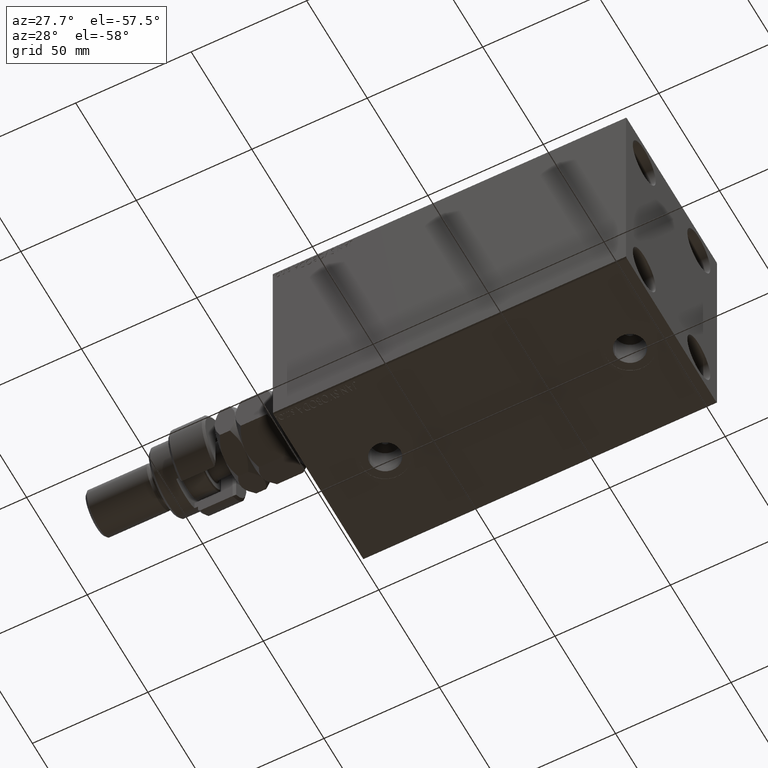
[diagram: clean part render]
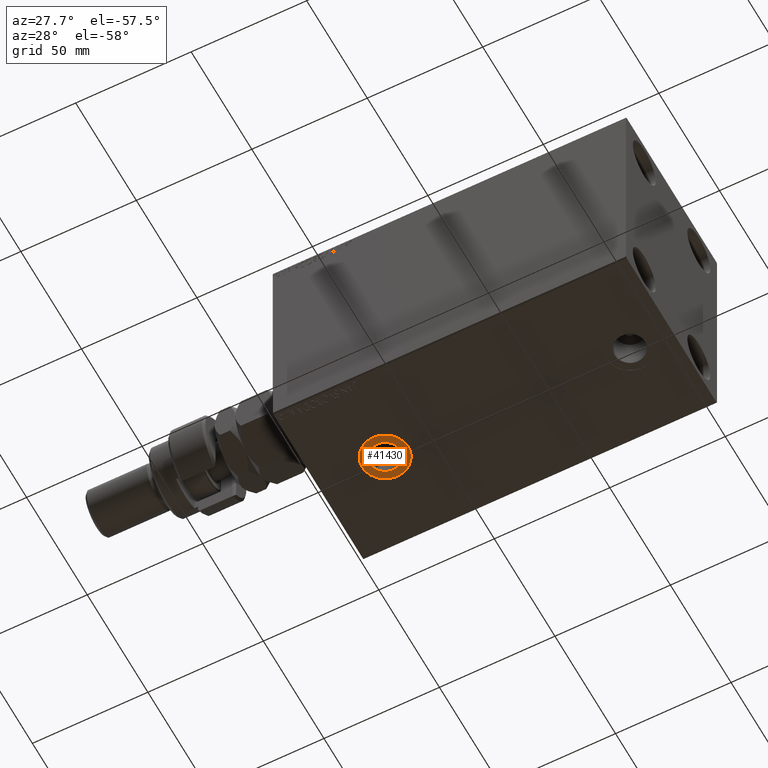
[diagram: same view with one face highlighted and labeled with its STEP entity id]
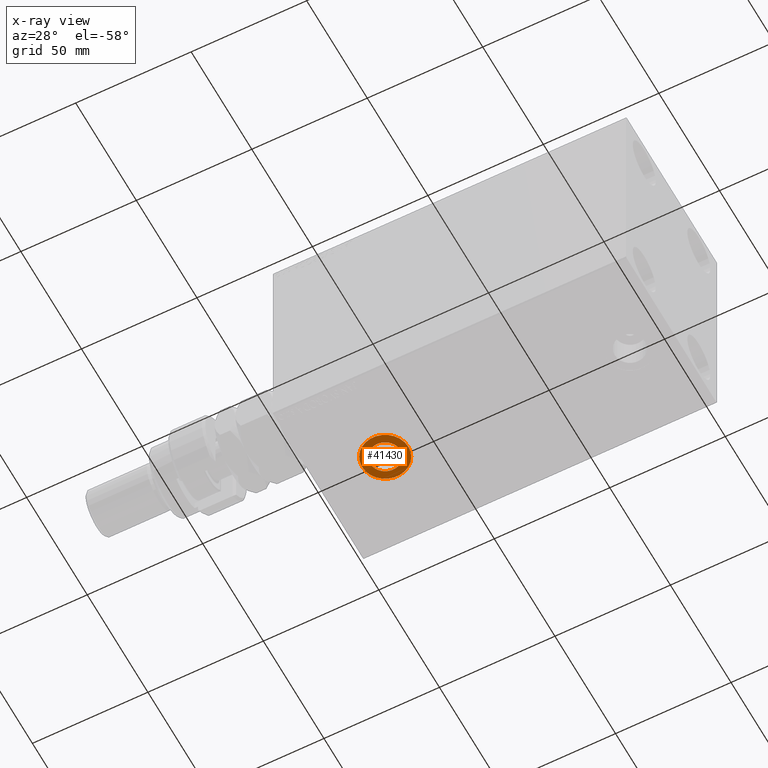
[diagram: x-ray of the same camera — body ghosted, the highlighted face saturated]
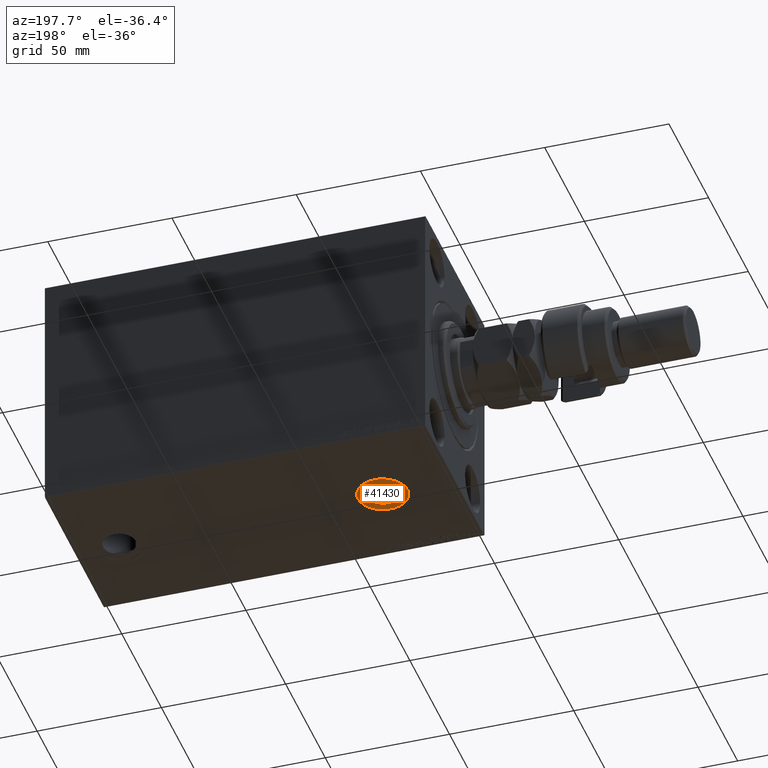
[diagram: same view with one face highlighted and labeled with its STEP entity id]
A machine part, auxiliary view. The second image highlights one B-rep face of the part: STEP entity #41430.
The next image is the same camera in x-ray: the body ghosted, the highlighted face saturated — about 0% of this face is hidden behind the body in this view.
A second angle (auxiliary view) of the same face is appended — the face is thin or edge-on in the first view.
In plain terms, the highlighted planar face has unit normal (0, 0, -1).
Its self-contained STEP definition (entity closure, byte-faithful):
#401 = ORIENTED_EDGE ( 'NONE', *, *, #15874, .F. ) ;
#783 = DIRECTION ( 'NONE',  ( 0.000000000000000000, 0.000000000000000000, -1.000000000000000000 ) ) ;
#968 = EDGE_CURVE ( 'NONE', #20266, #23835, #18720, .T. ) ;
#982 = ORIENTED_EDGE ( 'NONE', *, *, #968, .F. ) ;
#1516 = EDGE_LOOP ( 'NONE', ( #18045, #42117 ) ) ;
#2648 = CARTESIAN_POINT ( 'NONE',  ( 29.00000000000000000, -1.570503894091045345E-15, -49.90000000000000568 ) ) ;
#5655 = DIRECTION ( 'NONE',  ( -1.000000000000000000, 0.000000000000000000, -0.000000000000000000 ) ) ;
#6137 = FACE_OUTER_BOUND ( 'NONE', #1516, .T. ) ;
#7808 = AXIS2_PLACEMENT_3D ( 'NONE', #27319, #783, #19769 ) ;
#8487 = DIRECTION ( 'NONE',  ( -1.000000000000000000, 0.000000000000000000, 0.000000000000000000 ) ) ;
#9449 = DIRECTION ( 'NONE',  ( 0.000000000000000000, 0.000000000000000000, -1.000000000000000000 ) ) ;
#10602 = EDGE_LOOP ( 'NONE', ( #401, #982 ) ) ;
#12058 = VERTEX_POINT ( 'NONE', #36276 ) ;
#15405 = CARTESIAN_POINT ( 'NONE',  ( 19.00000000000000355, -1.570503894091045345E-15, -49.90000000000000568 ) ) ;
#15874 = EDGE_CURVE ( 'NONE', #23835, #20266, #47045, .T. ) ;
#16768 = DIRECTION ( 'NONE',  ( -1.000000000000000000, 0.000000000000000000, 0.000000000000000000 ) ) ;
#17023 = AXIS2_PLACEMENT_3D ( 'NONE', #19471, #30670, #8487 ) ;
#18045 = ORIENTED_EDGE ( 'NONE', *, *, #40230, .T. ) ;
#18720 = CIRCLE ( 'NONE', #7808, 6.580000000000002736 ) ;
#19471 = CARTESIAN_POINT ( 'NONE',  ( 29.00000000000000000, -1.570503894091045345E-15, -49.90000000000000568 ) ) ;
#19769 = DIRECTION ( 'NONE',  ( -1.000000000000000000, 0.000000000000000000, 0.000000000000000000 ) ) ;
#20266 = VERTEX_POINT ( 'NONE', #40805 ) ;
#23835 = VERTEX_POINT ( 'NONE', #39178 ) ;
#24179 = DIRECTION ( 'NONE',  ( 0.000000000000000000, 0.000000000000000000, -1.000000000000000000 ) ) ;
#24613 = AXIS2_PLACEMENT_3D ( 'NONE', #26269, #45470, #33802 ) ;
#26060 = AXIS2_PLACEMENT_3D ( 'NONE', #2648, #9449, #16768 ) ;
#26269 = CARTESIAN_POINT ( 'NONE',  ( 29.00000000000000000, -1.570503894091045345E-15, -49.90000000000000568 ) ) ;
#27319 = CARTESIAN_POINT ( 'NONE',  ( 29.00000000000000000, -1.570503894091045345E-15, -49.90000000000000568 ) ) ;
#28311 = PLANE ( 'NONE',  #44293 ) ;
#29629 = EDGE_CURVE ( 'NONE', #12058, #34638, #34685, .T. ) ;
#30670 = DIRECTION ( 'NONE',  ( 0.000000000000000000, 0.000000000000000000, -1.000000000000000000 ) ) ;
#33802 = DIRECTION ( 'NONE',  ( -1.000000000000000000, 0.000000000000000000, 0.000000000000000000 ) ) ;
#34638 = VERTEX_POINT ( 'NONE', #15405 ) ;
#34685 = CIRCLE ( 'NONE', #24613, 9.999999999999998224 ) ;
#35137 = CARTESIAN_POINT ( 'NONE',  ( 0.000000000000000000, 0.000000000000000000, -49.90000000000000568 ) ) ;
#36109 = FACE_BOUND ( 'NONE', #10602, .T. ) ;
#36276 = CARTESIAN_POINT ( 'NONE',  ( 39.00000000000000000, -3.458570949436926802E-16, -49.90000000000000568 ) ) ;
#39178 = CARTESIAN_POINT ( 'NONE',  ( 22.41999999999999815, -1.570503894091045345E-15, -49.90000000000000568 ) ) ;
#40230 = EDGE_CURVE ( 'NONE', #34638, #12058, #42667, .T. ) ;
#40805 = CARTESIAN_POINT ( 'NONE',  ( 35.57999999999999829, -7.646863002520864017E-16, -49.90000000000000568 ) ) ;
#41430 = ADVANCED_FACE ( 'NONE', ( #36109, #6137 ), #28311, .T. ) ;
#42117 = ORIENTED_EDGE ( 'NONE', *, *, #29629, .T. ) ;
#42667 = CIRCLE ( 'NONE', #17023, 9.999999999999998224 ) ;
#44293 = AXIS2_PLACEMENT_3D ( 'NONE', #35137, #24179, #5655 ) ;
#45470 = DIRECTION ( 'NONE',  ( 0.000000000000000000, 0.000000000000000000, -1.000000000000000000 ) ) ;
#47045 = CIRCLE ( 'NONE', #26060, 6.580000000000002736 ) ;